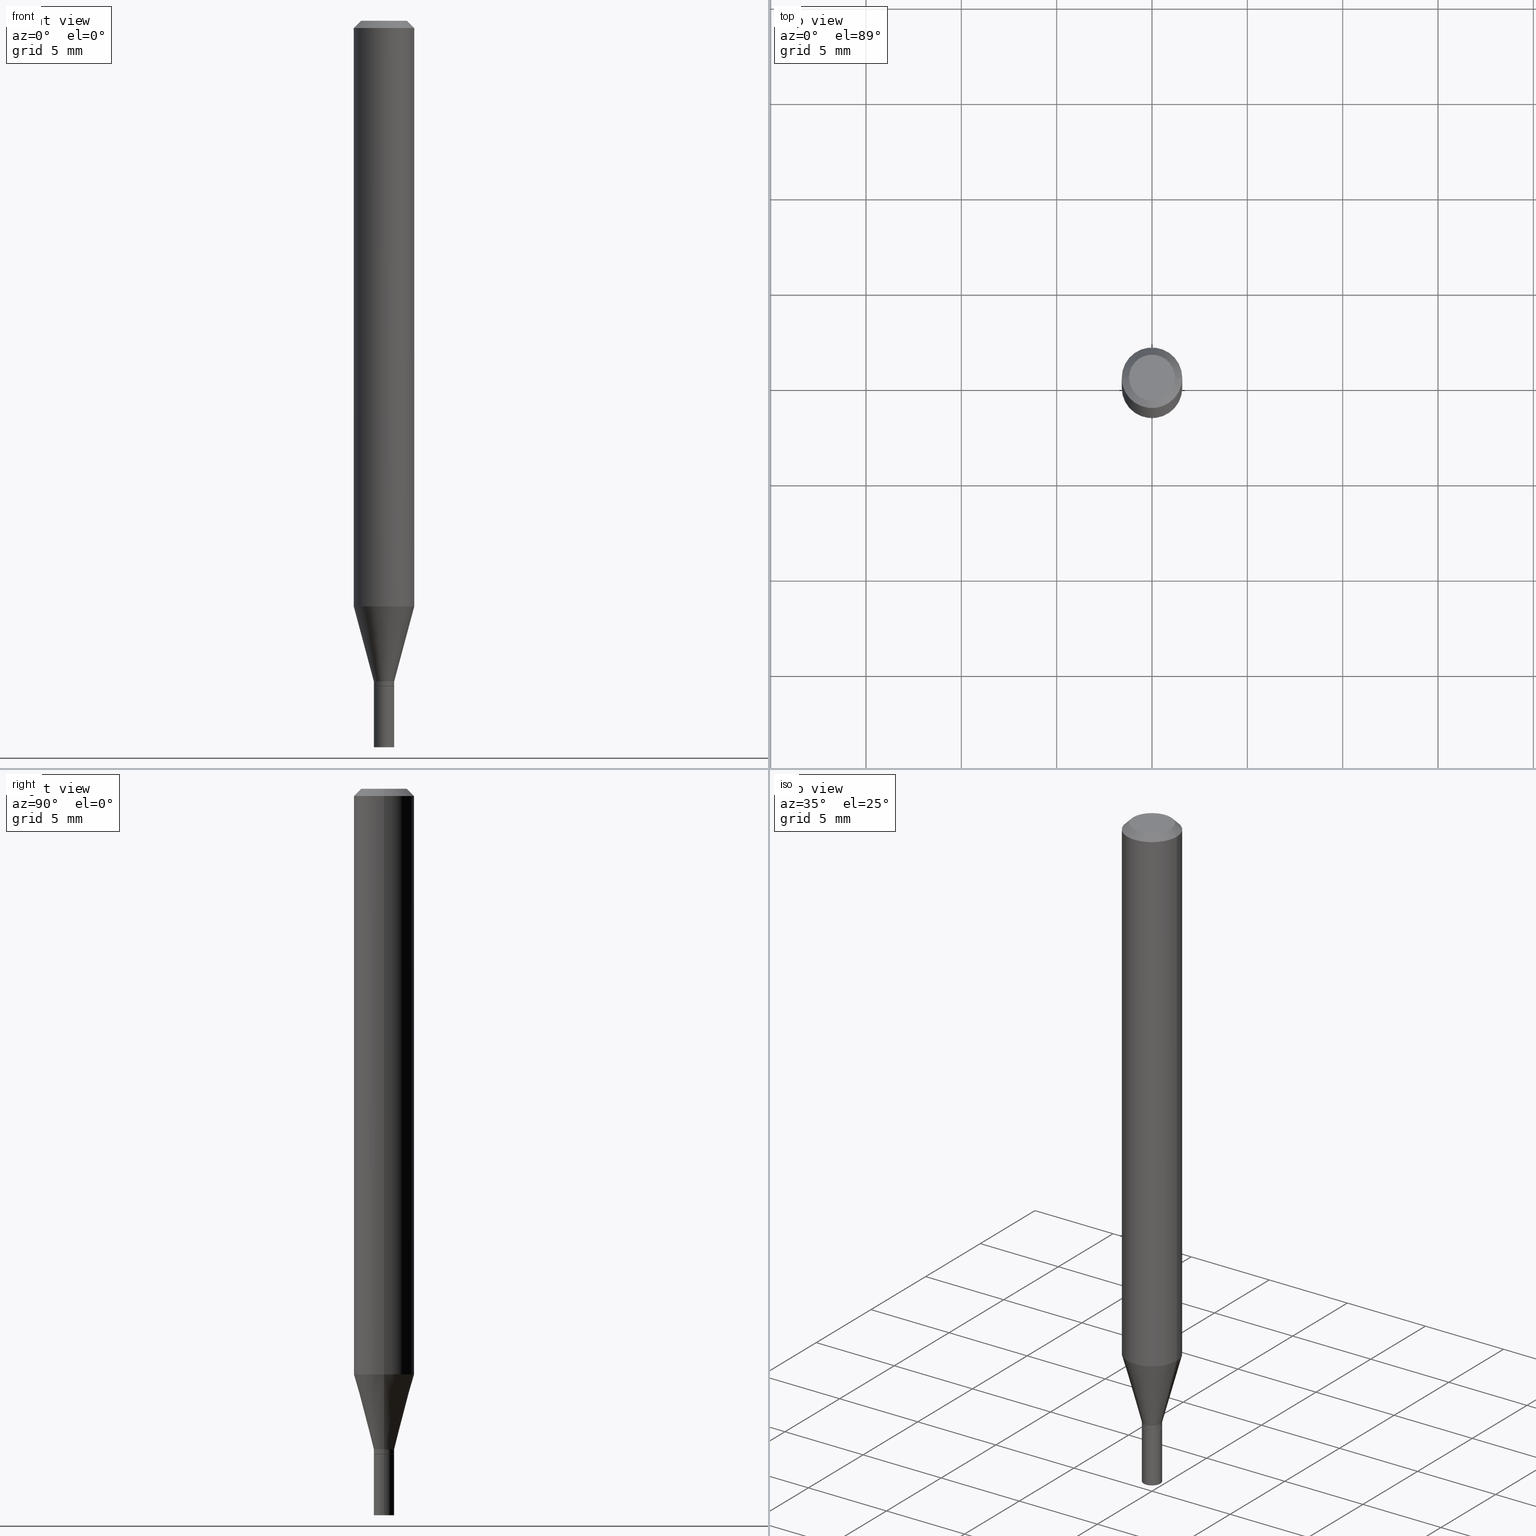
[diagram: canonical four-view strip — front | top / right | iso, engineering-drawing reading convention]
A machine part, canonical four-view strip (front | top / right | iso — engineering-drawing reading convention). The complete STEP part file that produces these views, byte-faithful:
ISO-10303-21;
HEADER;
FILE_DESCRIPTION (( 'STEP AP203' ),
    '1' );
FILE_NAME ('02471.STEP',
    '2024-03-18T20:47:53',
    ( '' ),
    ( '' ),
    'SwSTEP 2.0',
    'SolidWorks 2023',
    '' );
FILE_SCHEMA (( 'CONFIG_CONTROL_DESIGN' ));
ENDSEC;

DATA;
#1 = ORIENTED_EDGE ( 'NONE', *, *, #418, .T. ) ;
#2 = CARTESIAN_POINT ( 'NONE',  ( 0.02050000000000000086, -4.940446094463050737E-15, -1.374000000000000110 ) ) ;
#3 = FACE_OUTER_BOUND ( 'NONE', #51, .T. ) ;
#4 = PRODUCT_DEFINITION ( 'UNKNOWN', '', #394, #286 ) ;
#5 = ORIENTED_EDGE ( 'NONE', *, *, #190, .T. ) ;
#6 = DIRECTION ( 'NONE',  ( -2.445468806185136597E-29, 3.491481338843145583E-15, 1.000000000000000000 ) ) ;
#7 = CARTESIAN_POINT ( 'NONE',  ( 3.360074139698378339E-29, -4.797295359570482711E-15, -1.374000000000000110 ) ) ;
#8 = AXIS2_PLACEMENT_3D ( 'NONE', #279, #140, #26 ) ;
#9 = ORIENTED_EDGE ( 'NONE', *, *, #177, .F. ) ;
#10 = ORIENTED_EDGE ( 'NONE', *, *, #350, .T. ) ;
#11 = CARTESIAN_POINT ( 'NONE',  ( 0.02100000000000000477, -5.383864224496130787E-15, -1.500000000000000222 ) ) ;
#12 = AXIS2_PLACEMENT_3D ( 'NONE', #89, #13, #158 ) ;
#13 = DIRECTION ( 'NONE',  ( -2.445468806185136597E-29, 3.491481338843145583E-15, 1.000000000000000000 ) ) ;
#14 = DIRECTION ( 'NONE',  ( 1.000000000000000000, -6.982962677686284854E-15, 0.000000000000000000 ) ) ;
#15 = DIRECTION ( 'NONE',  ( -2.445468806185136877E-29, 3.491481338843145188E-15, 1.000000000000000000 ) ) ;
#16 =( NAMED_UNIT ( * ) PLANE_ANGLE_UNIT ( ) SI_UNIT ( $, .RADIAN. ) );
#17 = VECTOR ( 'NONE', #15, 39.37007874015748143 ) ;
#18 = DIRECTION ( 'NONE',  ( -2.445468806185136597E-29, 3.491481338843145583E-15, 1.000000000000000000 ) ) ;
#19 = EDGE_CURVE ( 'NONE', #234, #287, #138, .T. ) ;
#20 = DIRECTION ( 'NONE',  ( -2.445468806185136597E-29, 3.491481338843145583E-15, 1.000000000000000000 ) ) ;
#21 =( NAMED_UNIT ( * ) SI_UNIT ( $, .STERADIAN. ) SOLID_ANGLE_UNIT ( ) );
#22 = DIRECTION ( 'NONE',  ( -2.445468806185136877E-29, 3.491481338843145188E-15, 1.000000000000000000 ) ) ;
#23 = CALENDAR_DATE ( 2024, 18, 3 ) ;
#24 = AXIS2_PLACEMENT_3D ( 'NONE', #420, #98, #14 ) ;
#25 = AXIS2_PLACEMENT_3D ( 'NONE', #392, #65, #252 ) ;
#26 = DIRECTION ( 'NONE',  ( 1.000000000000000000, -6.982962677686268288E-15, 0.000000000000000000 ) ) ;
#27 = DIRECTION ( 'NONE',  ( 0.2588190451025213501, 1.565188264969621968E-15, 0.9659258262890682012 ) ) ;
#28 = CARTESIAN_POINT ( 'NONE',  ( 0.000000000000000000, 0.000000000000000000, 0.000000000000000000 ) ) ;
#29 = VERTEX_POINT ( 'NONE', #11 ) ;
#30 = LINE ( 'NONE', #353, #88 ) ;
#31 = CALENDAR_DATE ( 2024, 18, 3 ) ;
#32 = EDGE_LOOP ( 'NONE', ( #119, #151, #438, #445 ) ) ;
#33 = APPROVAL ( #182, 'UNSPECIFIED' ) ;
#34 = MANIFOLD_SOLID_BREP ( 'Body-Move/Copy2[2]', #153 ) ;
#35 = DIRECTION ( 'NONE',  ( -2.445468806185136597E-29, 3.491481338843145583E-15, 1.000000000000000000 ) ) ;
#36 = COORDINATED_UNIVERSAL_TIME_OFFSET ( 5, 0, .BEHIND. ) ;
#37 = ORIENTED_EDGE ( 'NONE', *, *, #206, .T. ) ;
#38 = SHAPE_DEFINITION_REPRESENTATION ( #327, #464 ) ;
#39 = EDGE_CURVE ( 'NONE', #382, #440, #96, .T. ) ;
#40 = ORIENTED_EDGE ( 'NONE', *, *, #459, .F. ) ;
#41 = VECTOR ( 'NONE', #288, 39.37007874015748143 ) ;
#42 = ADVANCED_FACE ( 'NONE', ( #331 ), #361, .T. ) ;
#43 = CIRCLE ( 'NONE', #422, 0.02050000000000000086 ) ;
#44 = ORIENTED_EDGE ( 'NONE', *, *, #165, .T. ) ;
#45 = DIRECTION ( 'NONE',  ( -1.000000000000000000, 6.982962677686266711E-15, 0.000000000000000000 ) ) ;
#46 = EDGE_LOOP ( 'NONE', ( #69, #44, #338, #83 ) ) ;
#47 = DIRECTION ( 'NONE',  ( 1.000000000000000000, -6.982962677686261977E-15, 0.000000000000000000 ) ) ;
#48 = EDGE_LOOP ( 'NONE', ( #193, #335, #148, #330 ) ) ;
#49 = VECTOR ( 'NONE', #94, 39.37007874015748143 ) ;
#50 = VERTEX_POINT ( 'NONE', #369 ) ;
#51 = EDGE_LOOP ( 'NONE', ( #268, #241, #142, #225 ) ) ;
#52 = FACE_OUTER_BOUND ( 'NONE', #303, .T. ) ;
#53 = ORIENTED_EDGE ( 'NONE', *, *, #39, .T. ) ;
#54 = LINE ( 'NONE', #314, #49 ) ;
#55 = EDGE_LOOP ( 'NONE', ( #10, #195 ) ) ;
#56 = CARTESIAN_POINT ( 'NONE',  ( -0.02050000000000000086, -4.651634098739662438E-15, -1.374000000000000110 ) ) ;
#57 = CARTESIAN_POINT ( 'NONE',  ( 0.02099999999999991804, -4.909022762413462095E-15, -1.363999999999999879 ) ) ;
#58 = AXIS2_PLACEMENT_3D ( 'NONE', #391, #70, #102 ) ;
#59 = CC_DESIGN_APPROVAL ( #33, ( #371 ) ) ;
#60 = DIRECTION ( 'NONE',  ( -2.445468806185136597E-29, 3.491481338843145583E-15, 1.000000000000000000 ) ) ;
#61 = CARTESIAN_POINT ( 'NONE',  ( 3.360074139698378339E-29, -4.797295359570482711E-15, -1.374000000000000110 ) ) ;
#62 =( CONVERSION_BASED_UNIT ( 'INCH', #346 ) LENGTH_UNIT ( ) NAMED_UNIT ( #274 ) );
#63 = ADVANCED_FACE ( 'NONE', ( #410 ), #199, .F. ) ;
#64 = DIRECTION ( 'NONE',  ( 1.000000000000000000, -6.982962677686268288E-15, 0.000000000000000000 ) ) ;
#65 = DIRECTION ( 'NONE',  ( -2.445468806185136597E-29, 3.491481338843145583E-15, 1.000000000000000000 ) ) ;
#66 = APPROVAL_PERSON_ORGANIZATION ( #434, #245, #187 ) ;
#67 = CARTESIAN_POINT ( 'NONE',  ( 0.02099999999999991804, -4.909022762413462095E-15, -1.363999999999999879 ) ) ;
#68 = CARTESIAN_POINT ( 'NONE',  ( 4.865611903635008365E-45, -6.946804277620623666E-31, -1.989643822619527736E-16 ) ) ;
#69 = ORIENTED_EDGE ( 'NONE', *, *, #91, .F. ) ;
#70 = DIRECTION ( 'NONE',  ( -2.445468806185136597E-29, 3.491481338843145583E-15, 1.000000000000000000 ) ) ;
#71 = CC_DESIGN_PERSON_AND_ORGANIZATION_ASSIGNMENT ( #186, #403, ( #394 ) ) ;
#72 = DIRECTION ( 'NONE',  ( -1.000000000000000000, 6.982962677686265922E-15, -4.876176775795935793E-29 ) ) ;
#73 = CONICAL_SURFACE ( 'NONE', #8, 0.02099999999999991804, 0.2617993877991500740 ) ;
#74 = AXIS2_PLACEMENT_3D ( 'NONE', #395, #137, #281 ) ;
#75 = ORIENTED_EDGE ( 'NONE', *, *, #383, .F. ) ;
#76 = SECURITY_CLASSIFICATION_LEVEL ( 'unclassified' ) ;
#77 = COORDINATED_UNIVERSAL_TIME_OFFSET ( 5, 0, .BEHIND. ) ;
#78 = APPLICATION_CONTEXT ( 'configuration controlled 3d designs of mechanical parts and assemblies' ) ;
#79 = VECTOR ( 'NONE', #131, 39.37007874015748143 ) ;
#80 = CC_DESIGN_APPROVAL ( #245, ( #394 ) ) ;
#81 = VERTEX_POINT ( 'NONE', #57 ) ;
#82 = EDGE_CURVE ( 'NONE', #144, #234, #417, .T. ) ;
#83 = ORIENTED_EDGE ( 'NONE', *, *, #97, .F. ) ;
#84 = CARTESIAN_POINT ( 'NONE',  ( -0.02100000000000000477, 1.492139745096210730E-16, -1.032976368953530510E-30 ) ) ;
#85 = VERTEX_POINT ( 'NONE', #423 ) ;
#86 = EDGE_CURVE ( 'NONE', #408, #81, #416, .T. ) ;
#87 = CARTESIAN_POINT ( 'NONE',  ( 0.04749999999999999362, -4.035134999187581581E-16, -1.989643822619502098E-16 ) ) ;
#88 = VECTOR ( 'NONE', #280, 39.37007874015747433 ) ;
#89 = CARTESIAN_POINT ( 'NONE',  ( 0.000000000000000000, 0.000000000000000000, 0.000000000000000000 ) ) ;
#90 = LINE ( 'NONE', #344, #269 ) ;
#91 = EDGE_CURVE ( 'NONE', #231, #85, #300, .T. ) ;
#92 = DIRECTION ( 'NONE',  ( -2.445468806185136597E-29, 3.491481338843145583E-15, 1.000000000000000000 ) ) ;
#93 = ORIENTED_EDGE ( 'NONE', *, *, #86, .T. ) ;
#94 = DIRECTION ( 'NONE',  ( 0.7071067811865522357, -7.319954787623271823E-15, -0.7071067811865427988 ) ) ;
#95 =( LENGTH_UNIT ( ) NAMED_UNIT ( * ) SI_UNIT ( $, .METRE. ) );
#96 = CIRCLE ( 'NONE', #125, 0.02050000000000000086 ) ;
#97 = EDGE_CURVE ( 'NONE', #85, #287, #90, .T. ) ;
#98 = DIRECTION ( 'NONE',  ( -2.445468806185136597E-29, 3.491481338843145583E-15, 1.000000000000000000 ) ) ;
#99 = CC_DESIGN_DATE_AND_TIME_ASSIGNMENT ( #247, #364, ( #371 ) ) ;
#100 = DIRECTION ( 'NONE',  ( 1.000000000000000000, -6.982962677686268288E-15, 0.000000000000000000 ) ) ;
#101 = PERSON_AND_ORGANIZATION_ROLE ( 'creator' ) ;
#102 = DIRECTION ( 'NONE',  ( 1.000000000000000000, -6.982962677686266711E-15, 4.876176775795935793E-29 ) ) ;
#103 = AXIS2_PLACEMENT_3D ( 'NONE', #159, #167, #343 ) ;
#104 = APPROVAL_PERSON_ORGANIZATION ( #366, #33, #172 ) ;
#105 = LINE ( 'NONE', #67, #355 ) ;
#106 = DIRECTION ( 'NONE',  ( 1.000000000000000000, -6.982962677686270655E-15, 0.000000000000000000 ) ) ;
#107 = FACE_OUTER_BOUND ( 'NONE', #374, .T. ) ;
#108 = ORIENTED_EDGE ( 'NONE', *, *, #375, .F. ) ;
#109 = AXIS2_PLACEMENT_3D ( 'NONE', #135, #92, #127 ) ;
#110 = CC_DESIGN_SECURITY_CLASSIFICATION ( #371, ( #394 ) ) ;
#111 = PERSON_AND_ORGANIZATION ( #402, #174 ) ;
#112 = ORIENTED_EDGE ( 'NONE', *, *, #310, .F. ) ;
#113 = PERSON_AND_ORGANIZATION ( #402, #174 ) ;
#114 = EDGE_LOOP ( 'NONE', ( #37, #340 ) ) ;
#115 = EDGE_CURVE ( 'NONE', #412, #293, #239, .T. ) ;
#116 = ORIENTED_EDGE ( 'NONE', *, *, #206, .F. ) ;
#117 = FACE_OUTER_BOUND ( 'NONE', #32, .T. ) ;
#118 = CIRCLE ( 'NONE', #306, 0.02099999999999992498 ) ;
#119 = ORIENTED_EDGE ( 'NONE', *, *, #165, .F. ) ;
#120 = DIRECTION ( 'NONE',  ( 2.445468806185136597E-29, -3.491481338843145583E-15, -1.000000000000000000 ) ) ;
#121 = EDGE_CURVE ( 'NONE', #29, #329, #169, .T. ) ;
#122 = ORIENTED_EDGE ( 'NONE', *, *, #240, .T. ) ;
#123 = ORIENTED_EDGE ( 'NONE', *, *, #217, .F. ) ;
#124 = FACE_OUTER_BOUND ( 'NONE', #264, .T. ) ;
#125 = AXIS2_PLACEMENT_3D ( 'NONE', #154, #302, #404 ) ;
#126 = CIRCLE ( 'NONE', #317, 0.06250000000000000000 ) ;
#127 = DIRECTION ( 'NONE',  ( 1.000000000000000000, -6.982962677686268288E-15, 0.000000000000000000 ) ) ;
#128 = CARTESIAN_POINT ( 'NONE',  ( 0.000000000000000000, 0.000000000000000000, 0.000000000000000000 ) ) ;
#129 = DIRECTION ( 'NONE',  ( -2.445468806185136877E-29, 3.491481338843145188E-15, 1.000000000000000000 ) ) ;
#130 = EDGE_CURVE ( 'NONE', #29, #291, #244, .T. ) ;
#131 = DIRECTION ( 'NONE',  ( -2.445468806185136877E-29, 3.491481338843145188E-15, 1.000000000000000000 ) ) ;
#132 = DIRECTION ( 'NONE',  ( 1.000000000000000000, 0.000000000000000000, 0.000000000000000000 ) ) ;
#133 = AXIS2_PLACEMENT_3D ( 'NONE', #360, #136, #72 ) ;
#134 = LOCAL_TIME ( 16, 47, 53.00000000000000000, #36 ) ;
#135 = CARTESIAN_POINT ( 'NONE',  ( 3.335619451636526233E-29, -4.762380546182051062E-15, -1.363999999999999879 ) ) ;
#136 = DIRECTION ( 'NONE',  ( 2.438088387897960049E-29, -3.491481338843145188E-15, -1.000000000000000000 ) ) ;
#137 = DIRECTION ( 'NONE',  ( -2.445468806185136597E-29, 3.491481338843145583E-15, 1.000000000000000000 ) ) ;
#138 = CIRCLE ( 'NONE', #393, 0.06250000000000000000 ) ;
#139 = CARTESIAN_POINT ( 'NONE',  ( 3.360074139698378339E-29, -4.797295359570482711E-15, -1.374000000000000110 ) ) ;
#140 = DIRECTION ( 'NONE',  ( -2.445468806185136597E-29, 3.491481338843145583E-15, 1.000000000000000000 ) ) ;
#141 = ADVANCED_FACE ( 'NONE', ( #202 ), #236, .T. ) ;
#142 = ORIENTED_EDGE ( 'NONE', *, *, #336, .T. ) ;
#143 = DATE_AND_TIME ( #191, #237 ) ;
#144 = VERTEX_POINT ( 'NONE', #384 ) ;
#145 = AXIS2_PLACEMENT_3D ( 'NONE', #305, #389, #453 ) ;
#146 = AXIS2_PLACEMENT_3D ( 'NONE', #166, #311, #452 ) ;
#147 = DIRECTION ( 'NONE',  ( -2.438088387897960049E-29, 3.491481338843145188E-15, 1.000000000000000000 ) ) ;
#148 = ORIENTED_EDGE ( 'NONE', *, *, #260, .F. ) ;
#149 = ORIENTED_EDGE ( 'NONE', *, *, #19, .F. ) ;
#150 = EDGE_LOOP ( 'NONE', ( #161, #446, #93, #9 ) ) ;
#151 = ORIENTED_EDGE ( 'NONE', *, *, #350, .F. ) ;
#152 = EDGE_CURVE ( 'NONE', #408, #412, #262, .T. ) ;
#153 = CLOSED_SHELL ( 'NONE', ( #332, #324, #42, #141, #170, #233, #265, #358, #298, #63, #198, #407 ) ) ;
#154 = CARTESIAN_POINT ( 'NONE',  ( 3.360074139698378339E-29, -4.797295359570482711E-15, -1.374000000000000110 ) ) ;
#155 = VECTOR ( 'NONE', #307, 39.37007874015748143 ) ;
#156 = FACE_OUTER_BOUND ( 'NONE', #150, .T. ) ;
#157 = APPLICATION_PROTOCOL_DEFINITION ( 'international standard', 'config_control_design', 1994, #435 ) ;
#158 = DIRECTION ( 'NONE',  ( 1.000000000000000000, -6.982962677686266711E-15, 4.876176775795936353E-29 ) ) ;
#159 = CARTESIAN_POINT ( 'NONE',  ( 0.000000000000000000, 0.000000000000000000, 0.000000000000000000 ) ) ;
#160 = APPROVAL_STATUS ( 'not_yet_approved' ) ;
#161 = ORIENTED_EDGE ( 'NONE', *, *, #115, .F. ) ;
#162 = DIRECTION ( 'NONE',  ( -0.7071067811865522357, 2.468850131082306364E-15, -0.7071067811865427988 ) ) ;
#163 = VECTOR ( 'NONE', #22, 39.37007874015748143 ) ;
#164 = AXIS2_PLACEMENT_3D ( 'NONE', #68, #216, #357 ) ;
#165 = EDGE_CURVE ( 'NONE', #231, #234, #54, .T. ) ;
#166 = CARTESIAN_POINT ( 'NONE',  ( 2.956864977566705326E-29, -4.221619537547040407E-15, -1.209119891485891607 ) ) ;
#167 = DIRECTION ( 'NONE',  ( -2.445468806185136597E-29, 3.491481338843145583E-15, 1.000000000000000000 ) ) ;
#168 = CARTESIAN_POINT ( 'NONE',  ( 0.02050000000000000086, -4.940446094463050737E-15, -1.374000000000000110 ) ) ;
#169 = LINE ( 'NONE', #209, #79 ) ;
#170 = ADVANCED_FACE ( 'NONE', ( #124 ), #227, .T. ) ;
#171 = CARTESIAN_POINT ( 'NONE',  ( 3.360074139698378339E-29, -4.797295359570482711E-15, -1.374000000000000110 ) ) ;
#172 = APPROVAL_ROLE ( '' ) ;
#173 = AXIS2_PLACEMENT_3D ( 'NONE', #139, #396, #222 ) ;
#174 = ORGANIZATION ( 'UNSPECIFIED', 'UNSPECIFIED', '' ) ;
#175 = PLANE ( 'NONE',  #341 ) ;
#176 = FACE_OUTER_BOUND ( 'NONE', #55, .T. ) ;
#177 = EDGE_CURVE ( 'NONE', #293, #81, #322, .T. ) ;
#178 = CARTESIAN_POINT ( 'NONE',  ( 0.06250000000000000000, -4.888073874380388472E-16, -0.01499999999999999944 ) ) ;
#179 = ORIENTED_EDGE ( 'NONE', *, *, #121, .T. ) ;
#180 = AXIS2_PLACEMENT_3D ( 'NONE', #28, #185, #253 ) ;
#181 = LINE ( 'NONE', #2, #41 ) ;
#182 = APPROVAL_STATUS ( 'not_yet_approved' ) ;
#183 = ORIENTED_EDGE ( 'NONE', *, *, #418, .F. ) ;
#184 = EDGE_CURVE ( 'NONE', #432, #287, #272, .T. ) ;
#185 = DIRECTION ( 'NONE',  ( -2.445468806185136597E-29, 3.491481338843145583E-15, 1.000000000000000000 ) ) ;
#186 = PERSON_AND_ORGANIZATION ( #402, #174 ) ;
#187 = APPROVAL_ROLE ( '' ) ;
#188 = ORIENTED_EDGE ( 'NONE', *, *, #190, .F. ) ;
#189 = AXIS2_PLACEMENT_3D ( 'NONE', #207, #351, #348 ) ;
#190 = EDGE_CURVE ( 'NONE', #291, #29, #399, .T. ) ;
#191 = CALENDAR_DATE ( 2024, 18, 3 ) ;
#192 = CARTESIAN_POINT ( 'NONE',  ( 3.668203209277705088E-31, -5.237222008264718399E-17, -0.01499999999999999944 ) ) ;
#193 = ORIENTED_EDGE ( 'NONE', *, *, #152, .T. ) ;
#194 = CC_DESIGN_DATE_AND_TIME_ASSIGNMENT ( #226, #426, ( #4 ) ) ;
#195 = ORIENTED_EDGE ( 'NONE', *, *, #91, .T. ) ;
#196 = MANIFOLD_SOLID_BREP ( 'Body-Move/Copy2[1]', #283 ) ;
#197 = CYLINDRICAL_SURFACE ( 'NONE', #12, 0.02099999999999992151 ) ;
#198 = ADVANCED_FACE ( 'NONE', ( #52 ), #421, .T. ) ;
#199 = PLANE ( 'NONE',  #354 ) ;
#200 = PERSON_AND_ORGANIZATION_ROLE ( 'design_owner' ) ;
#201 = EDGE_LOOP ( 'NONE', ( #376, #1, #455, #112 ) ) ;
#202 = FACE_OUTER_BOUND ( 'NONE', #267, .T. ) ;
#203 = ORIENTED_EDGE ( 'NONE', *, *, #457, .T. ) ;
#204 = LINE ( 'NONE', #56, #155 ) ;
#205 = CARTESIAN_POINT ( 'NONE',  ( 3.335619451636526233E-29, -4.762380546182051062E-15, -1.363999999999999879 ) ) ;
#206 = EDGE_CURVE ( 'NONE', #329, #50, #250, .T. ) ;
#207 = CARTESIAN_POINT ( 'NONE',  ( 3.360074139698378339E-29, -4.797295359570482711E-15, -1.374000000000000110 ) ) ;
#208 = AXIS2_PLACEMENT_3D ( 'NONE', #61, #20, #413 ) ;
#209 = CARTESIAN_POINT ( 'NONE',  ( 0.02100000000000000477, -1.466422162314116246E-16, 1.023997122917146650E-30 ) ) ;
#210 = CARTESIAN_POINT ( 'NONE',  ( 3.668203209277704895E-29, -5.237222008264718177E-15, -1.500000000000000222 ) ) ;
#211 = CALENDAR_DATE ( 2024, 18, 3 ) ;
#212 = FACE_OUTER_BOUND ( 'NONE', #299, .T. ) ;
#213 = VECTOR ( 'NONE', #129, 39.37007874015748143 ) ;
#214 = CYLINDRICAL_SURFACE ( 'NONE', #58, 0.06250000000000000000 ) ;
#215 = ADVANCED_FACE ( 'NONE', ( #460 ), #243, .F. ) ;
#216 = DIRECTION ( 'NONE',  ( -2.445468806185136597E-29, 3.491481338843145583E-15, 1.000000000000000000 ) ) ;
#217 = EDGE_CURVE ( 'NONE', #50, #329, #294, .T. ) ;
#218 = CARTESIAN_POINT ( 'NONE',  ( -0.06250000000000000000, -1.692906668964781127E-15, -0.01499999999999999944 ) ) ;
#219 = ORIENTED_EDGE ( 'NONE', *, *, #39, .F. ) ;
#220 = AXIS2_PLACEMENT_3D ( 'NONE', #171, #18, #312 ) ;
#221 = AXIS2_PLACEMENT_3D ( 'NONE', #238, #372, #337 ) ;
#222 = DIRECTION ( 'NONE',  ( 1.000000000000000000, -6.982962677686261977E-15, 0.000000000000000000 ) ) ;
#223 = PERSON_AND_ORGANIZATION_ROLE ( 'classification_officer' ) ;
#224 = PRODUCT ( '02471', '02471', '', ( #424 ) ) ;
#225 = ORIENTED_EDGE ( 'NONE', *, *, #282, .F. ) ;
#226 = DATE_AND_TIME ( #211, #134 ) ;
#227 = CONICAL_SURFACE ( 'NONE', #414, 0.02099999999999991804, 0.2617993877991500740 ) ;
#228 =( GEOMETRIC_REPRESENTATION_CONTEXT ( 3 ) GLOBAL_UNCERTAINTY_ASSIGNED_CONTEXT ( ( #255 ) ) GLOBAL_UNIT_ASSIGNED_CONTEXT ( ( #62, #16, #21 ) ) REPRESENTATION_CONTEXT ( 'NONE', 'WORKASPACE' ) );
#229 = CC_DESIGN_PERSON_AND_ORGANIZATION_ASSIGNMENT ( #113, #101, ( #394 ) ) ;
#230 = ORIENTED_EDGE ( 'NONE', *, *, #260, .T. ) ;
#231 = VERTEX_POINT ( 'NONE', #87 ) ;
#232 = ORIENTED_EDGE ( 'NONE', *, *, #184, .T. ) ;
#233 = ADVANCED_FACE ( 'NONE', ( #3 ), #73, .T. ) ;
#234 = VERTEX_POINT ( 'NONE', #178 ) ;
#235 = ORIENTED_EDGE ( 'NONE', *, *, #82, .F. ) ;
#236 = CYLINDRICAL_SURFACE ( 'NONE', #103, 0.06250000000000000000 ) ;
#237 = LOCAL_TIME ( 16, 47, 53.00000000000000000, #368 ) ;
#238 = CARTESIAN_POINT ( 'NONE',  ( 3.668203209277705088E-31, -5.237222008264718399E-17, -0.01499999999999999944 ) ) ;
#239 = LINE ( 'NONE', #381, #17 ) ;
#240 = EDGE_CURVE ( 'NONE', #293, #432, #30, .T. ) ;
#241 = ORIENTED_EDGE ( 'NONE', *, *, #177, .T. ) ;
#242 = DIRECTION ( 'NONE',  ( 1.000000000000000000, -6.982962677686284854E-15, 0.000000000000000000 ) ) ;
#243 = PLANE ( 'NONE',  #370 ) ;
#244 = CIRCLE ( 'NONE', #24, 0.02100000000000000477 ) ;
#245 = APPROVAL ( #436, 'UNSPECIFIED' ) ;
#246 = DIRECTION ( 'NONE',  ( 1.000000000000000000, -6.982962677686267499E-15, 4.852736867747366768E-29 ) ) ;
#247 = DATE_AND_TIME ( #352, #400 ) ;
#248 = CARTESIAN_POINT ( 'NONE',  ( 0.02100000000000000477, -4.943937575801894533E-15, -1.374000000000000110 ) ) ;
#249 = CARTESIAN_POINT ( 'NONE',  ( 3.358851405295285537E-29, -4.795549618901061208E-15, -1.373500000000000165 ) ) ;
#250 = CIRCLE ( 'NONE', #220, 0.02100000000000000477 ) ;
#251 = CIRCLE ( 'NONE', #164, 0.04749999999999999362 ) ;
#252 = DIRECTION ( 'NONE',  ( 1.000000000000000000, -6.982962677686266711E-15, 4.876176775795936353E-29 ) ) ;
#253 = DIRECTION ( 'NONE',  ( 1.000000000000000000, -6.982962677686265922E-15, 4.876176775795935232E-29 ) ) ;
#254 = CARTESIAN_POINT ( 'NONE',  ( 1.466422162314452005E-16, 0.02099999999999520653, -1.374000000000000110 ) ) ;
#255 = UNCERTAINTY_MEASURE_WITH_UNIT (LENGTH_MEASURE( 1.000000000000000082E-05 ), #62, 'distance_accuracy_value', 'NONE');
#256 = COORDINATED_UNIVERSAL_TIME_OFFSET ( 5, 0, .BEHIND. ) ;
#257 = ADVANCED_FACE ( 'NONE', ( #356 ), #175, .F. ) ;
#258 = CONICAL_SURFACE ( 'NONE', #221, 0.06250000000000000000, 0.7853981633974549403 ) ;
#259 = APPROVAL_DATE_TIME ( #401, #390 ) ;
#260 = EDGE_CURVE ( 'NONE', #81, #293, #444, .T. ) ;
#261 = ORIENTED_EDGE ( 'NONE', *, *, #130, .T. ) ;
#262 = CIRCLE ( 'NONE', #145, 0.02099999999999992498 ) ;
#263 = CARTESIAN_POINT ( 'NONE',  ( 3.360074139698378339E-29, -4.797295359570482711E-15, -1.374000000000000110 ) ) ;
#264 = EDGE_LOOP ( 'NONE', ( #230, #122, #373, #333 ) ) ;
#265 = ADVANCED_FACE ( 'NONE', ( #427 ), #214, .T. ) ;
#266 = CC_DESIGN_PERSON_AND_ORGANIZATION_ASSIGNMENT ( #290, #397, ( #4 ) ) ;
#267 = EDGE_LOOP ( 'NONE', ( #203, #232, #149, #235 ) ) ;
#268 = ORIENTED_EDGE ( 'NONE', *, *, #240, .F. ) ;
#269 = VECTOR ( 'NONE', #162, 39.37007874015748143 ) ;
#270 = DIRECTION ( 'NONE',  ( -2.445468806185136597E-29, 3.491481338843145583E-15, 1.000000000000000000 ) ) ;
#271 = APPROVAL_PERSON_ORGANIZATION ( #304, #390, #292 ) ;
#272 = LINE ( 'NONE', #458, #213 ) ;
#273 = DIRECTION ( 'NONE',  ( 0.000000000000000000, 0.000000000000000000, 1.000000000000000000 ) ) ;
#274 = DIMENSIONAL_EXPONENTS ( 1.000000000000000000, 0.000000000000000000, 0.000000000000000000, 0.000000000000000000, 0.000000000000000000, 0.000000000000000000, 0.000000000000000000 ) ;
#275 = CARTESIAN_POINT ( 'NONE',  ( 3.668203209277705088E-31, -5.237222008264718399E-17, -0.01499999999999999944 ) ) ;
#276 = DIRECTION ( 'NONE',  ( -2.438088387897960049E-29, 3.491481338843145188E-15, 1.000000000000000000 ) ) ;
#277 = DIRECTION ( 'NONE',  ( -2.445468806185136597E-29, 3.491481338843145583E-15, 1.000000000000000000 ) ) ;
#278 = APPLICATION_PROTOCOL_DEFINITION ( 'international standard', 'config_control_design', 1994, #78 ) ;
#279 = CARTESIAN_POINT ( 'NONE',  ( 3.335619451636526233E-29, -4.762380546182051062E-15, -1.363999999999999879 ) ) ;
#280 = DIRECTION ( 'NONE',  ( -0.2588190451025213501, 5.211531920934551042E-15, 0.9659258262890682012 ) ) ;
#281 = DIRECTION ( 'NONE',  ( 1.000000000000000000, -6.982962677686265922E-15, 4.876176775795935232E-29 ) ) ;
#282 = EDGE_CURVE ( 'NONE', #432, #144, #126, .T. ) ;
#283 = CLOSED_SHELL ( 'NONE', ( #315, #215, #345, #257 ) ) ;
#284 = VECTOR ( 'NONE', #342, 39.37007874015748143 ) ;
#285 = CYLINDRICAL_SURFACE ( 'NONE', #25, 0.02099999999999992151 ) ;
#286 = DESIGN_CONTEXT ( 'detailed design', #435, 'design' ) ;
#287 = VERTEX_POINT ( 'NONE', #218 ) ;
#288 = DIRECTION ( 'NONE',  ( 0.7071067811865656694, -2.468850131082446387E-15, 0.7071067811865294761 ) ) ;
#289 = CC_DESIGN_PERSON_AND_ORGANIZATION_ASSIGNMENT ( #111, #223, ( #371 ) ) ;
#290 = PERSON_AND_ORGANIZATION ( #402, #174 ) ;
#291 = VERTEX_POINT ( 'NONE', #318 ) ;
#292 = APPROVAL_ROLE ( '' ) ;
#293 = VERTEX_POINT ( 'NONE', #321 ) ;
#294 = CIRCLE ( 'NONE', #208, 0.02100000000000000477 ) ;
#295 = CIRCLE ( 'NONE', #146, 0.06250000000000000000 ) ;
#296 = DATE_AND_TIME ( #31, #380 ) ;
#297 = DIRECTION ( 'NONE',  ( 1.000000000000000000, -6.982962677686265922E-15, 4.876176775795935793E-29 ) ) ;
#298 = ADVANCED_FACE ( 'NONE', ( #176 ), #325, .F. ) ;
#299 = EDGE_LOOP ( 'NONE', ( #75, #5, #179, #123 ) ) ;
#300 = CIRCLE ( 'NONE', #437, 0.04749999999999999362 ) ;
#301 = AXIS2_PLACEMENT_3D ( 'NONE', #275, #60, #313 ) ;
#302 = DIRECTION ( 'NONE',  ( -2.445468806185136597E-29, 3.491481338843145583E-15, 1.000000000000000000 ) ) ;
#303 = EDGE_LOOP ( 'NONE', ( #183, #53, #367, #411 ) ) ;
#304 = PERSON_AND_ORGANIZATION ( #402, #174 ) ;
#305 = CARTESIAN_POINT ( 'NONE',  ( 3.358851405295285537E-29, -4.795549618901061208E-15, -1.373500000000000165 ) ) ;
#306 = AXIS2_PLACEMENT_3D ( 'NONE', #249, #326, #433 ) ;
#307 = DIRECTION ( 'NONE',  ( -0.7071067811865656694, 7.493145998870420424E-15, 0.7071067811865294761 ) ) ;
#308 = AXIS2_PLACEMENT_3D ( 'NONE', #128, #273, #132 ) ;
#309 = CARTESIAN_POINT ( 'NONE',  ( 0.06250000000000000000, -4.364351673553916694E-16, 3.047610484872459871E-30 ) ) ;
#310 = EDGE_CURVE ( 'NONE', #440, #408, #181, .T. ) ;
#311 = DIRECTION ( 'NONE',  ( -2.445468806185136597E-29, 3.491481338843145583E-15, 1.000000000000000000 ) ) ;
#312 = DIRECTION ( 'NONE',  ( 1.000000000000000000, -6.982962677686284854E-15, 0.000000000000000000 ) ) ;
#313 = DIRECTION ( 'NONE',  ( 1.000000000000000000, -6.982962677686266711E-15, 0.000000000000000000 ) ) ;
#314 = CARTESIAN_POINT ( 'NONE',  ( 0.06250000000000000000, -4.811533449433679005E-16, -0.01499999999999999944 ) ) ;
#315 = ADVANCED_FACE ( 'NONE', ( #107 ), #363, .T. ) ;
#316 = CARTESIAN_POINT ( 'NONE',  ( 4.865611903635008365E-45, -6.946804277620623666E-31, -1.989643822619527736E-16 ) ) ;
#317 = AXIS2_PLACEMENT_3D ( 'NONE', #431, #35, #106 ) ;
#318 = CARTESIAN_POINT ( 'NONE',  ( -0.02100000000000000477, -4.868044709407979667E-15, -1.500000000000000222 ) ) ;
#319 = EDGE_CURVE ( 'NONE', #412, #408, #118, .T. ) ;
#320 = CARTESIAN_POINT ( 'NONE',  ( 3.335619451636526233E-29, -4.762380546182051062E-15, -1.363999999999999879 ) ) ;
#321 = CARTESIAN_POINT ( 'NONE',  ( -0.02099999999999991804, -4.195348449684704235E-15, -1.363999999999999879 ) ) ;
#322 = CIRCLE ( 'NONE', #109, 0.02099999999999991804 ) ;
#323 = EDGE_LOOP ( 'NONE', ( #385, #188 ) ) ;
#324 = ADVANCED_FACE ( 'NONE', ( #398 ), #379, .T. ) ;
#325 = PLANE ( 'NONE',  #133 ) ;
#326 = DIRECTION ( 'NONE',  ( -2.445468806185136597E-29, 3.491481338843145583E-15, 1.000000000000000000 ) ) ;
#327 = PRODUCT_DEFINITION_SHAPE ( 'NONE', 'NONE',  #4 ) ;
#328 = APPROVAL_DATE_TIME ( #143, #245 ) ;
#329 = VERTEX_POINT ( 'NONE', #248 ) ;
#330 = ORIENTED_EDGE ( 'NONE', *, *, #86, .F. ) ;
#331 = FACE_OUTER_BOUND ( 'NONE', #46, .T. ) ;
#332 = ADVANCED_FACE ( 'NONE', ( #429 ), #285, .T. ) ;
#333 = ORIENTED_EDGE ( 'NONE', *, *, #336, .F. ) ;
#334 = AXIS2_PLACEMENT_3D ( 'NONE', #320, #466, #100 ) ;
#335 = ORIENTED_EDGE ( 'NONE', *, *, #115, .T. ) ;
#336 = EDGE_CURVE ( 'NONE', #81, #144, #105, .T. ) ;
#337 = DIRECTION ( 'NONE',  ( -1.000000000000000000, 6.982962677686266711E-15, 0.000000000000000000 ) ) ;
#338 = ORIENTED_EDGE ( 'NONE', *, *, #19, .T. ) ;
#339 = CARTESIAN_POINT ( 'NONE',  ( -0.02050000000000000086, -4.648984871565551237E-15, -1.374000000000000110 ) ) ;
#340 = ORIENTED_EDGE ( 'NONE', *, *, #217, .T. ) ;
#341 = AXIS2_PLACEMENT_3D ( 'NONE', #254, #462, #425 ) ;
#342 = DIRECTION ( 'NONE',  ( -2.445468806185136877E-29, 3.491481338843145188E-15, 1.000000000000000000 ) ) ;
#343 = DIRECTION ( 'NONE',  ( 1.000000000000000000, -6.982962677686266711E-15, 4.876176775795935793E-29 ) ) ;
#344 = CARTESIAN_POINT ( 'NONE',  ( -0.06250000000000000000, 3.840629472727444916E-16, -0.01499999999999999944 ) ) ;
#345 = ADVANCED_FACE ( 'NONE', ( #212 ), #465, .T. ) ;
#346 = LENGTH_MEASURE_WITH_UNIT ( LENGTH_MEASURE( 0.02539999999999999897 ), #95 );
#347 = AXIS2_PLACEMENT_3D ( 'NONE', #210, #349, #242 ) ;
#348 = DIRECTION ( 'NONE',  ( 1.000000000000000000, -6.982962677686261977E-15, 0.000000000000000000 ) ) ;
#349 = DIRECTION ( 'NONE',  ( -2.445468806185136597E-29, 3.491481338843145583E-15, 1.000000000000000000 ) ) ;
#350 = EDGE_CURVE ( 'NONE', #85, #231, #251, .T. ) ;
#351 = DIRECTION ( 'NONE',  ( -2.445468806185136597E-29, 3.491481338843145583E-15, 1.000000000000000000 ) ) ;
#352 = CALENDAR_DATE ( 2024, 18, 3 ) ;
#353 = CARTESIAN_POINT ( 'NONE',  ( -0.02099999999999991804, -4.613166571672430680E-15, -1.363999999999999879 ) ) ;
#354 = AXIS2_PLACEMENT_3D ( 'NONE', #7, #147, #297 ) ;
#355 = VECTOR ( 'NONE', #27, 39.37007874015747433 ) ;
#356 = FACE_OUTER_BOUND ( 'NONE', #114, .T. ) ;
#357 = DIRECTION ( 'NONE',  ( 1.000000000000000000, -6.982962677686267499E-15, 4.852736867747366768E-29 ) ) ;
#358 = ADVANCED_FACE ( 'NONE', ( #117 ), #258, .T. ) ;
#359 = EDGE_LOOP ( 'NONE', ( #108, #219 ) ) ;
#360 = CARTESIAN_POINT ( 'NONE',  ( 3.316907271900976096E-16, 0.04749999999999999362, -2.653275547260257586E-16 ) ) ;
#361 = CONICAL_SURFACE ( 'NONE', #450, 0.06250000000000000000, 0.7853981633974549403 ) ;
#362 = ORIENTED_EDGE ( 'NONE', *, *, #82, .T. ) ;
#363 = CYLINDRICAL_SURFACE ( 'NONE', #180, 0.02100000000000000477 ) ;
#364 = DATE_TIME_ROLE ( 'classification_date' ) ;
#365 = CARTESIAN_POINT ( 'NONE',  ( 3.668203209277705088E-31, -5.237222008264718399E-17, -0.01499999999999999944 ) ) ;
#366 = PERSON_AND_ORGANIZATION ( #402, #174 ) ;
#367 = ORIENTED_EDGE ( 'NONE', *, *, #310, .T. ) ;
#368 = COORDINATED_UNIVERSAL_TIME_OFFSET ( 5, 0, .BEHIND. ) ;
#369 = CARTESIAN_POINT ( 'NONE',  ( -0.02100000000000000477, -4.868044709407979667E-15, -1.374000000000000110 ) ) ;
#370 = AXIS2_PLACEMENT_3D ( 'NONE', #456, #276, #388 ) ;
#371 = SECURITY_CLASSIFICATION ( '', '', #76 ) ;
#372 = DIRECTION ( 'NONE',  ( 2.445468806185136597E-29, -3.491481338843145583E-15, -1.000000000000000000 ) ) ;
#373 = ORIENTED_EDGE ( 'NONE', *, *, #457, .F. ) ;
#374 = EDGE_LOOP ( 'NONE', ( #261, #443, #116, #378 ) ) ;
#375 = EDGE_CURVE ( 'NONE', #440, #382, #43, .T. ) ;
#376 = ORIENTED_EDGE ( 'NONE', *, *, #375, .T. ) ;
#377 = DIRECTION ( 'NONE',  ( -2.445468806185136597E-29, 3.491481338843145583E-15, 1.000000000000000000 ) ) ;
#378 = ORIENTED_EDGE ( 'NONE', *, *, #121, .F. ) ;
#379 = CONICAL_SURFACE ( 'NONE', #173, 0.02050000000000000086, 0.7853981633974739252 ) ;
#380 = LOCAL_TIME ( 16, 47, 53.00000000000000000, #439 ) ;
#381 = CARTESIAN_POINT ( 'NONE',  ( -0.02099999999999992151, 1.492139745096204813E-16, -1.032976368953526306E-30 ) ) ;
#382 = VERTEX_POINT ( 'NONE', #339 ) ;
#383 = EDGE_CURVE ( 'NONE', #291, #50, #409, .T. ) ;
#384 = CARTESIAN_POINT ( 'NONE',  ( 0.06249999999999999306, -4.658054704902432076E-15, -1.209119891485891607 ) ) ;
#385 = ORIENTED_EDGE ( 'NONE', *, *, #130, .F. ) ;
#386 = CARTESIAN_POINT ( 'NONE',  ( -0.06249999999999999306, -3.777530327696978579E-15, -1.209119891485891607 ) ) ;
#387 = DIRECTION ( 'NONE',  ( -2.445468806185136877E-29, 3.491481338843145188E-15, 1.000000000000000000 ) ) ;
#388 = DIRECTION ( 'NONE',  ( 1.000000000000000000, -6.982962677686265922E-15, 4.876176775795935793E-29 ) ) ;
#389 = DIRECTION ( 'NONE',  ( -2.445468806185136597E-29, 3.491481338843145583E-15, 1.000000000000000000 ) ) ;
#390 = APPROVAL ( #160, 'UNSPECIFIED' ) ;
#391 = CARTESIAN_POINT ( 'NONE',  ( 0.000000000000000000, 0.000000000000000000, 0.000000000000000000 ) ) ;
#392 = CARTESIAN_POINT ( 'NONE',  ( 0.000000000000000000, 0.000000000000000000, 0.000000000000000000 ) ) ;
#393 = AXIS2_PLACEMENT_3D ( 'NONE', #365, #6, #441 ) ;
#394 = PRODUCT_DEFINITION_FORMATION_WITH_SPECIFIED_SOURCE ( 'ANY', '', #224, .NOT_KNOWN. ) ;
#395 = CARTESIAN_POINT ( 'NONE',  ( 0.000000000000000000, 0.000000000000000000, 0.000000000000000000 ) ) ;
#396 = DIRECTION ( 'NONE',  ( -2.445468806185136597E-29, 3.491481338843145583E-15, 1.000000000000000000 ) ) ;
#397 = PERSON_AND_ORGANIZATION_ROLE ( 'creator' ) ;
#398 = FACE_OUTER_BOUND ( 'NONE', #201, .T. ) ;
#399 = CIRCLE ( 'NONE', #347, 0.02100000000000000477 ) ;
#400 = LOCAL_TIME ( 16, 47, 53.00000000000000000, #77 ) ;
#401 = DATE_AND_TIME ( #23, #415 ) ;
#402 = PERSON ( 'UNSPECIFIED', 'UNSPECIFIED', 'UNSPECIFIED', ('UNSPECIFIED'), ('UNSPECIFIED'), ('UNSPECIFIED') ) ;
#403 = PERSON_AND_ORGANIZATION_ROLE ( 'design_supplier' ) ;
#404 = DIRECTION ( 'NONE',  ( 1.000000000000000000, -6.982962677686261977E-15, 0.000000000000000000 ) ) ;
#405 = VECTOR ( 'NONE', #387, 39.37007874015748143 ) ;
#406 = EDGE_LOOP ( 'NONE', ( #447, #419, #362, #40 ) ) ;
#407 = ADVANCED_FACE ( 'NONE', ( #156 ), #197, .T. ) ;
#408 = VERTEX_POINT ( 'NONE', #442 ) ;
#409 = LINE ( 'NONE', #84, #284 ) ;
#410 = FACE_OUTER_BOUND ( 'NONE', #359, .T. ) ;
#411 = ORIENTED_EDGE ( 'NONE', *, *, #319, .F. ) ;
#412 = VERTEX_POINT ( 'NONE', #448 ) ;
#413 = DIRECTION ( 'NONE',  ( 1.000000000000000000, -6.982962677686284854E-15, 0.000000000000000000 ) ) ;
#414 = AXIS2_PLACEMENT_3D ( 'NONE', #205, #270, #64 ) ;
#415 = LOCAL_TIME ( 16, 47, 53.00000000000000000, #256 ) ;
#416 = LINE ( 'NONE', #449, #405 ) ;
#417 = LINE ( 'NONE', #309, #163 ) ;
#418 = EDGE_CURVE ( 'NONE', #382, #412, #204, .T. ) ;
#419 = ORIENTED_EDGE ( 'NONE', *, *, #282, .T. ) ;
#420 = CARTESIAN_POINT ( 'NONE',  ( 3.668203209277704895E-29, -5.237222008264718177E-15, -1.500000000000000222 ) ) ;
#421 = CONICAL_SURFACE ( 'NONE', #189, 0.02050000000000000086, 0.7853981633974739252 ) ;
#422 = AXIS2_PLACEMENT_3D ( 'NONE', #263, #377, #47 ) ;
#423 = CARTESIAN_POINT ( 'NONE',  ( -0.04749999999999999362, 3.578768372314206562E-16, -1.989643822619551895E-16 ) ) ;
#424 = MECHANICAL_CONTEXT ( 'NONE', #78, 'mechanical' ) ;
#425 = DIRECTION ( 'NONE',  ( -1.000000000000000000, 6.982962677686265922E-15, -4.876176775795935793E-29 ) ) ;
#426 = DATE_TIME_ROLE ( 'creation_date' ) ;
#427 = FACE_OUTER_BOUND ( 'NONE', #406, .T. ) ;
#428 = PRODUCT_RELATED_PRODUCT_CATEGORY ( 'detail', '', ( #224 ) ) ;
#429 = FACE_OUTER_BOUND ( 'NONE', #48, .T. ) ;
#430 = CC_DESIGN_APPROVAL ( #390, ( #4 ) ) ;
#431 = CARTESIAN_POINT ( 'NONE',  ( 2.956864977566705326E-29, -4.221619537547040407E-15, -1.209119891485891607 ) ) ;
#432 = VERTEX_POINT ( 'NONE', #386 ) ;
#433 = DIRECTION ( 'NONE',  ( 1.000000000000000000, -6.982962677686265922E-15, 0.000000000000000000 ) ) ;
#434 = PERSON_AND_ORGANIZATION ( #402, #174 ) ;
#435 = APPLICATION_CONTEXT ( 'configuration controlled 3d designs of mechanical parts and assemblies' ) ;
#436 = APPROVAL_STATUS ( 'not_yet_approved' ) ;
#437 = AXIS2_PLACEMENT_3D ( 'NONE', #316, #277, #246 ) ;
#438 = ORIENTED_EDGE ( 'NONE', *, *, #97, .T. ) ;
#439 = COORDINATED_UNIVERSAL_TIME_OFFSET ( 5, 0, .BEHIND. ) ;
#440 = VERTEX_POINT ( 'NONE', #168 ) ;
#441 = DIRECTION ( 'NONE',  ( 1.000000000000000000, -6.982962677686266711E-15, 0.000000000000000000 ) ) ;
#442 = CARTESIAN_POINT ( 'NONE',  ( 0.02099999999999992498, -4.942191835132472241E-15, -1.373500000000000165 ) ) ;
#443 = ORIENTED_EDGE ( 'NONE', *, *, #383, .T. ) ;
#444 = CIRCLE ( 'NONE', #334, 0.02099999999999991804 ) ;
#445 = ORIENTED_EDGE ( 'NONE', *, *, #459, .T. ) ;
#446 = ORIENTED_EDGE ( 'NONE', *, *, #319, .T. ) ;
#447 = ORIENTED_EDGE ( 'NONE', *, *, #184, .F. ) ;
#448 = CARTESIAN_POINT ( 'NONE',  ( -0.02099999999999992498, -4.646335644391440825E-15, -1.373500000000000165 ) ) ;
#449 = CARTESIAN_POINT ( 'NONE',  ( 0.02099999999999992151, -1.466422162314110576E-16, 1.023997122917142796E-30 ) ) ;
#450 = AXIS2_PLACEMENT_3D ( 'NONE', #192, #120, #45 ) ;
#451 = CIRCLE ( 'NONE', #301, 0.06250000000000000000 ) ;
#452 = DIRECTION ( 'NONE',  ( 1.000000000000000000, -6.982962677686270655E-15, 0.000000000000000000 ) ) ;
#453 = DIRECTION ( 'NONE',  ( 1.000000000000000000, -6.982962677686265922E-15, 0.000000000000000000 ) ) ;
#454 = PERSON_AND_ORGANIZATION ( #402, #174 ) ;
#455 = ORIENTED_EDGE ( 'NONE', *, *, #152, .F. ) ;
#456 = CARTESIAN_POINT ( 'NONE',  ( 3.576687321579069994E-29, -5.368277968210015545E-15, -1.500000000000000222 ) ) ;
#457 = EDGE_CURVE ( 'NONE', #144, #432, #295, .T. ) ;
#458 = CARTESIAN_POINT ( 'NONE',  ( -0.06250000000000000000, 4.440892098500626162E-16, -3.074334431409316114E-30 ) ) ;
#459 = EDGE_CURVE ( 'NONE', #287, #234, #451, .T. ) ;
#460 = FACE_OUTER_BOUND ( 'NONE', #323, .T. ) ;
#461 = APPROVAL_DATE_TIME ( #296, #33 ) ;
#462 = DIRECTION ( 'NONE',  ( 2.438088387897960049E-29, -3.491481338843145188E-15, -1.000000000000000000 ) ) ;
#463 = CC_DESIGN_PERSON_AND_ORGANIZATION_ASSIGNMENT ( #454, #200, ( #224 ) ) ;
#464 = ADVANCED_BREP_SHAPE_REPRESENTATION ( '02471', ( #196, #34, #308 ), #228 ) ;
#465 = CYLINDRICAL_SURFACE ( 'NONE', #74, 0.02100000000000000477 ) ;
#466 = DIRECTION ( 'NONE',  ( -2.445468806185136597E-29, 3.491481338843145583E-15, 1.000000000000000000 ) ) ;
ENDSEC;
END-ISO-10303-21;
